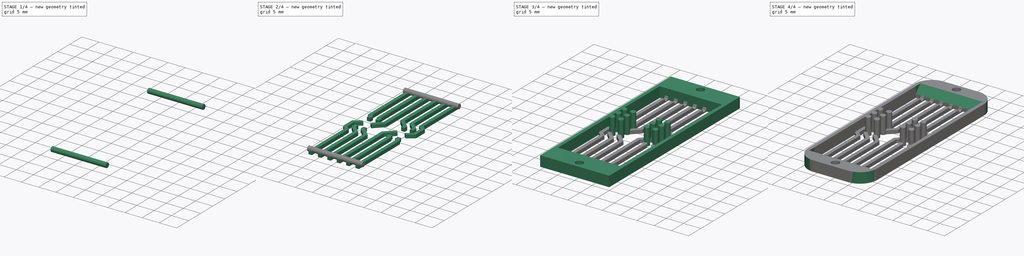
[diagram: build sequence overview — one tinted view per stage of 4, left to right]
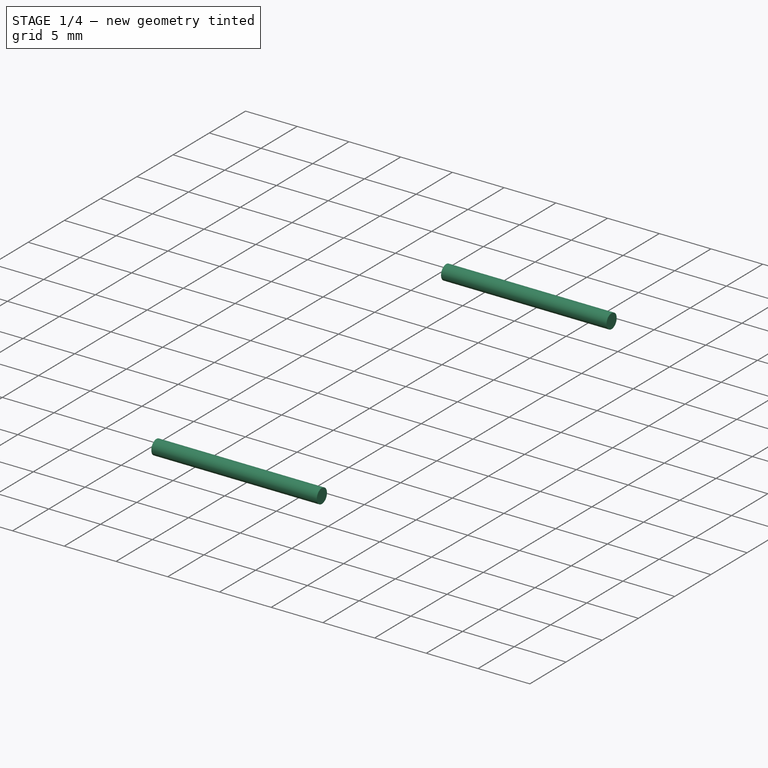
[diagram: stage 1 of 4 — iso view after this stage's code; geometry added in this stage tinted green]
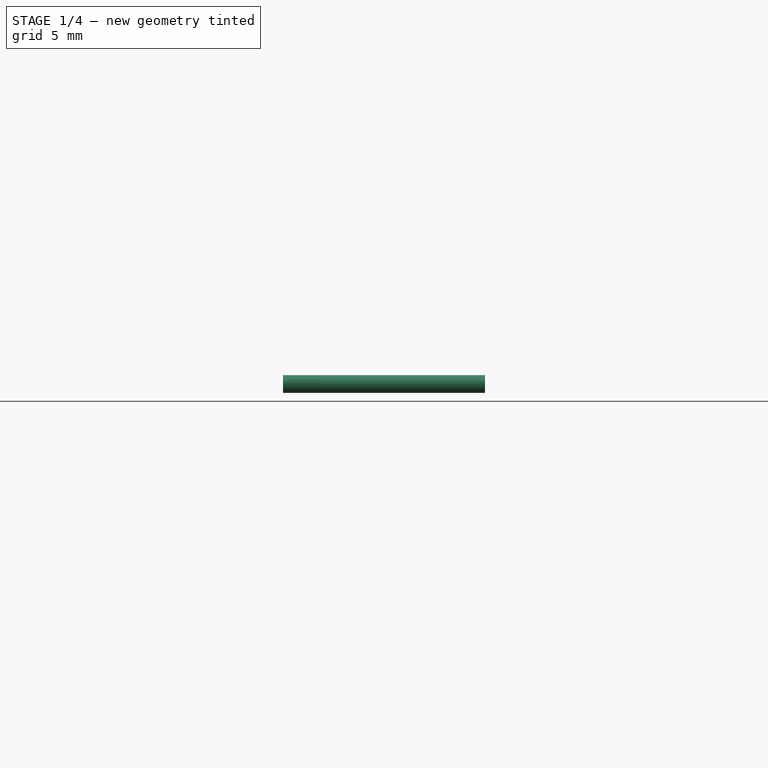
[diagram: stage 1 of 4 — front view after this stage's code; geometry added in this stage tinted green]
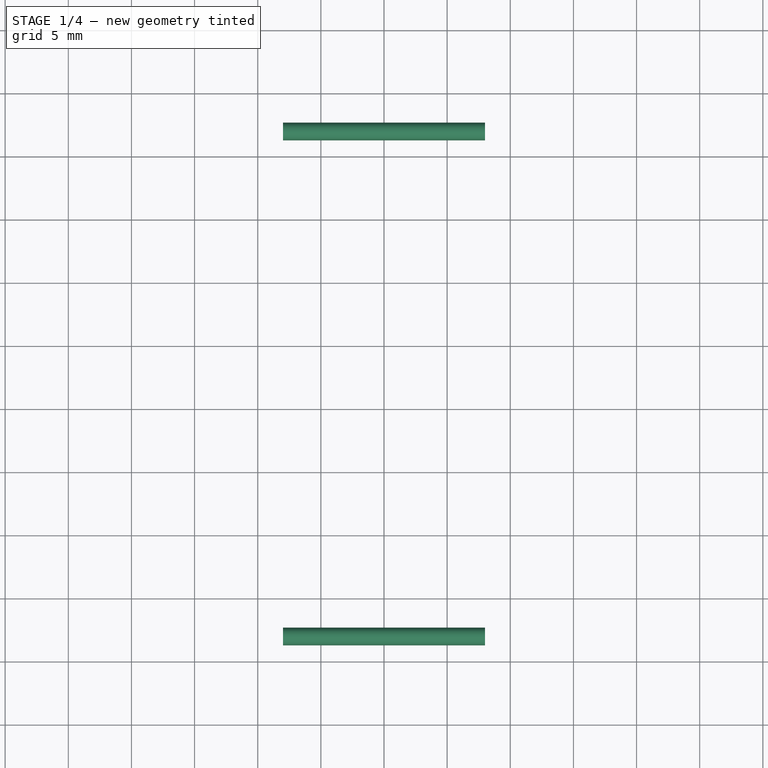
[diagram: stage 1 of 4 — top view after this stage's code; geometry added in this stage tinted green]
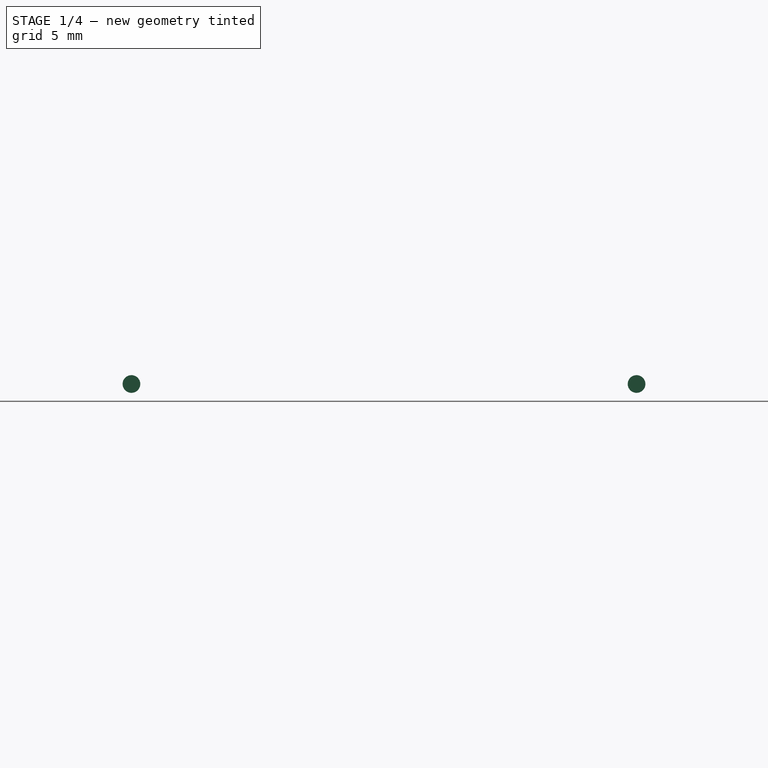
[diagram: stage 1 of 4 — right view after this stage's code; geometry added in this stage tinted green]
FCSTD DOCUMENT  (FreeCAD 0.16R6706 (Git))
Label: Pins_2.1
License: All rights reserved
LicenseURL: http://en.wikipedia.org/wiki/All_rights_reserved
objects: Sketcher::SketchObject×4, PartDesign::Pad×4, Part::MultiFuse×3, PartDesign::Fillet×2, Part::Cylinder×2, Part::Cut×1, PartDesign::Chamfer×1
note: 21 computed .brp shape members not serialized (recipe doc carries the construction recipe); baked Part::Feature solids carry a one-line shape summary decoded from their .brp

FEATURE [Part::Cylinder] Cylinder  label="Zylinder"
  Angle = 360
  Height = 16
  Placement = pos=(2,47,1) rot=(0,1,0;1.5708rad)
  Radius = 0.7
FEATURE [Part::Cylinder] Cylinder001  label="Zylinder001"
  Angle = 360
  Height = 16
  Placement = pos=(2,7,1) rot=(0,1,0;1.5708rad)
  Radius = 0.7
FEATURE [Part::MultiFuse] Fusion001
  Shapes = -> [Cylinder001,Cylinder]
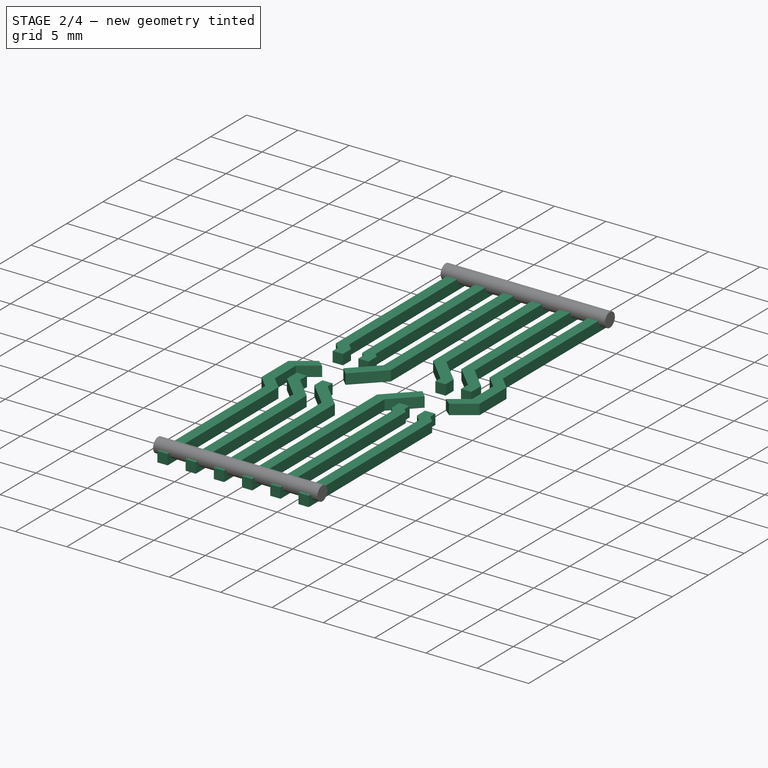
[diagram: stage 2 of 4 — iso view after this stage's code; geometry added in this stage tinted green]
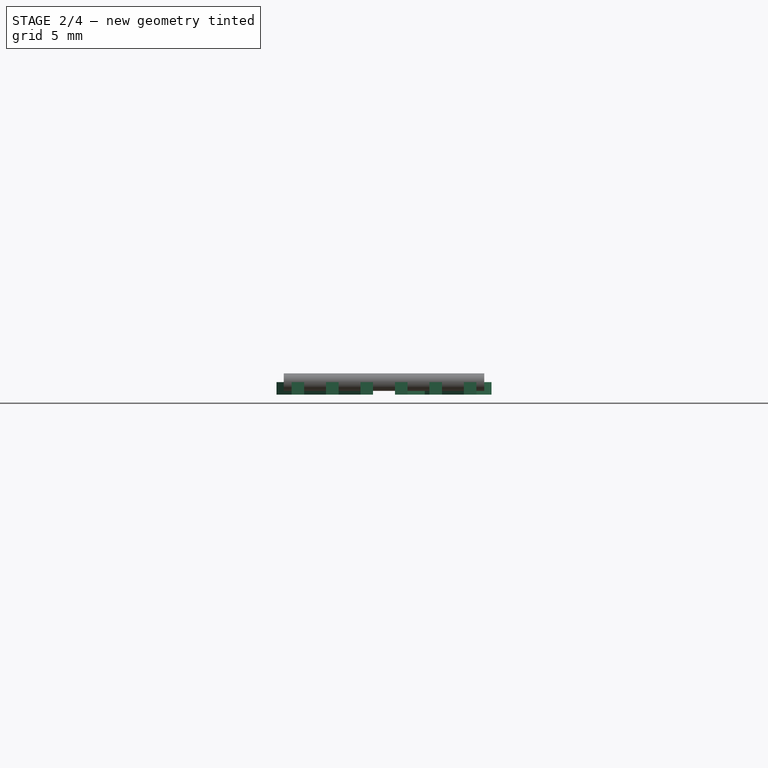
[diagram: stage 2 of 4 — front view after this stage's code; geometry added in this stage tinted green]
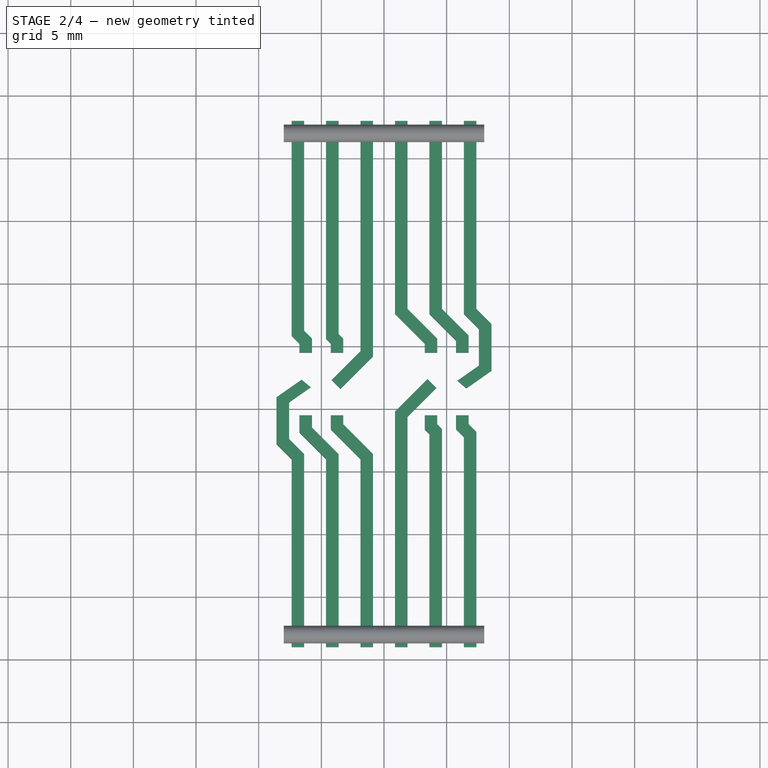
[diagram: stage 2 of 4 — top view after this stage's code; geometry added in this stage tinted green]
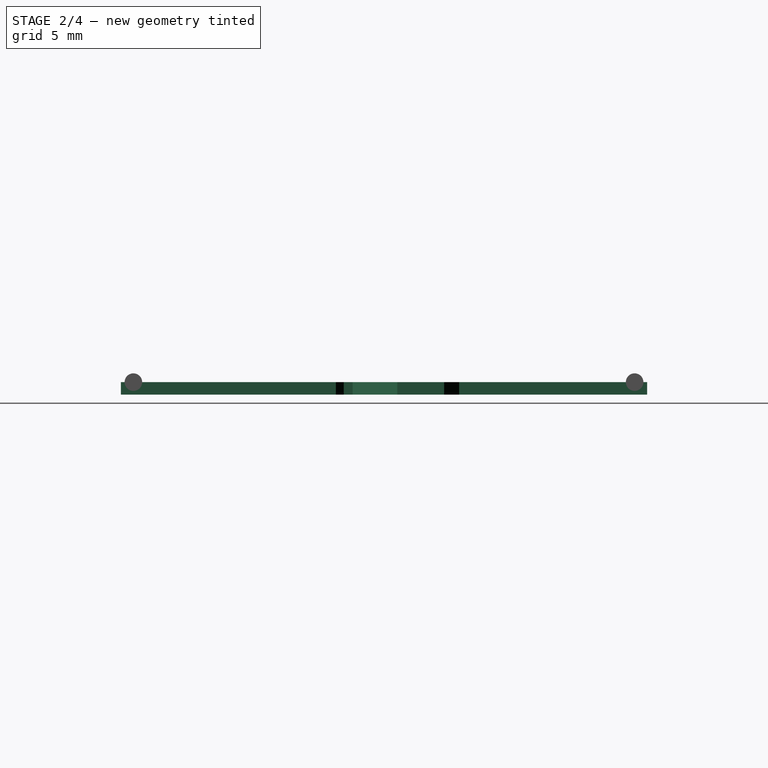
[diagram: stage 2 of 4 — right view after this stage's code; geometry added in this stage tinted green]
FEATURE [Sketcher::SketchObject] Sketch
  sketch-geometry (48):
    g0: LineSegment StartX=2.625 StartY=6 StartZ=0 EndX=2.625 EndY=21 EndZ=0
    g1: LineSegment StartX=3.625 StartY=21.4142 StartZ=0 EndX=3.625 EndY=6 EndZ=0
    g2: LineSegment StartX=5.375 StartY=6 StartZ=0 EndX=5.375 EndY=21 EndZ=0
    g3: LineSegment StartX=6.375 StartY=21.4142 StartZ=0 EndX=6.375 EndY=6 EndZ=0
    g4: LineSegment StartX=8.125 StartY=6 StartZ=0 EndX=8.125 EndY=21 EndZ=0
    g5: LineSegment StartX=9.125 StartY=21.4142 StartZ=0 EndX=9.125 EndY=6 EndZ=0
    g6: LineSegment StartX=10.875 StartY=6 StartZ=0 EndX=10.875 EndY=24.8 EndZ=0
    g7: LineSegment StartX=11.875 StartY=24.3858 StartZ=0 EndX=11.875 EndY=6 EndZ=0
    g8: LineSegment StartX=16.375 StartY=6 StartZ=0 EndX=16.375 EndY=22.75 EndZ=0
    g9: LineSegment StartX=17.375 StartY=23.1642 StartZ=0 EndX=17.375 EndY=6 EndZ=0
    g10: LineSegment StartX=5.375 StartY=21 StartZ=0 EndX=3.25 EndY=23.125 EndZ=0
    g11: LineSegment StartX=4.25 StartY=23.5392 StartZ=0 EndX=6.375 EndY=21.4142 EndZ=0
    g12: LineSegment StartX=2.625 StartY=21 StartZ=0 EndX=1.425 EndY=22.2 EndZ=0
    g13: LineSegment StartX=3.25 StartY=23.125 StartZ=0 EndX=3.25 EndY=24.5 EndZ=0
    g14: LineSegment StartX=3.25 StartY=24.5 StartZ=0 EndX=4.25 EndY=24.5 EndZ=0
    g15: LineSegment StartX=4.25 StartY=24.5 StartZ=0 EndX=4.25 EndY=23.5392 EndZ=0
    g16: LineSegment StartX=8.125 StartY=21 StartZ=0 EndX=5.75 EndY=23.375 EndZ=0
    g17: LineSegment StartX=5.75 StartY=23.375 StartZ=0 EndX=5.75 EndY=24.5 EndZ=0
    g18: LineSegment StartX=5.75 StartY=24.5 StartZ=0 EndX=6.75 EndY=24.5 EndZ=0
    g19: LineSegment StartX=6.75 StartY=24.5 StartZ=0 EndX=6.75 EndY=23.7892 EndZ=0
    g20: LineSegment StartX=6.75 StartY=23.7892 StartZ=0 EndX=9.125 EndY=21.4142 EndZ=0
    g21: LineSegment StartX=2.425 StartY=22.6142 StartZ=0 EndX=2.425 EndY=25.5317 EndZ=0
    g22: LineSegment StartX=2.425 StartY=22.6142 StartZ=0 EndX=3.625 EndY=21.4142 EndZ=0
    g23: LineSegment StartX=3.42537 StartY=27.3466 StartZ=0 EndX=4.15106 EndY=26.7403 EndZ=0
    g24: LineSegment StartX=4.15106 StartY=26.7403 StartZ=0 EndX=2.425 EndY=25.5317 EndZ=0
    g25: LineSegment StartX=3.42537 StartY=27.3466 StartZ=0 EndX=1.425 EndY=25.9459 EndZ=0
    g26: LineSegment StartX=2.625 StartY=6 StartZ=0 EndX=3.625 EndY=6 EndZ=0
    g27: LineSegment StartX=6.375 StartY=6 StartZ=0 EndX=5.375 EndY=6 EndZ=0
    g28: LineSegment StartX=8.125 StartY=6 StartZ=0 EndX=9.125 EndY=6 EndZ=0
    g29: LineSegment StartX=10.875 StartY=6 StartZ=0 EndX=11.875 EndY=6 EndZ=0
    g30: LineSegment StartX=13.625 StartY=6 StartZ=0 EndX=14.625 EndY=6 EndZ=0
    g31: LineSegment StartX=16.375 StartY=6 StartZ=0 EndX=17.375 EndY=6 EndZ=0
    g32: LineSegment StartX=10.875 StartY=24.8 StartZ=0 EndX=13.4747 EndY=27.3998 EndZ=0
    g33: LineSegment StartX=13.4747 StartY=27.3998 StartZ=0 EndX=14.1788 EndY=26.6896 EndZ=0
    g34: LineSegment StartX=14.1788 StartY=26.6896 StartZ=0 EndX=11.875 EndY=24.3858 EndZ=0
    g35: LineSegment StartX=13.625 StartY=6 StartZ=0 EndX=13.625 EndY=23 EndZ=0
    g36: LineSegment StartX=13.625 StartY=23 StartZ=0 EndX=13.25 EndY=23.375 EndZ=0
    g37: LineSegment StartX=14.25 StartY=23.7892 StartZ=0 EndX=14.625 EndY=23.4142 EndZ=0
    g38: LineSegment StartX=14.625 StartY=23.4142 StartZ=0 EndX=14.625 EndY=6 EndZ=0
    g39: LineSegment StartX=13.25 StartY=23.375 StartZ=0 EndX=13.25 EndY=24.5 EndZ=0
    g40: LineSegment StartX=13.25 StartY=24.5 StartZ=0 EndX=14.25 EndY=24.5 EndZ=0
    g41: LineSegment StartX=14.25 StartY=24.5 StartZ=0 EndX=14.25 EndY=23.7892 EndZ=0
    g42: LineSegment StartX=17.375 StartY=23.1642 StartZ=0 EndX=16.75 EndY=23.7892 EndZ=0
    g43: LineSegment StartX=16.75 StartY=23.7892 StartZ=0 EndX=16.75 EndY=24.5 EndZ=0
    g44: LineSegment StartX=16.75 StartY=24.5 StartZ=0 EndX=15.75 EndY=24.5 EndZ=0
    g45: LineSegment StartX=15.75 StartY=24.5 StartZ=0 EndX=15.75 EndY=23.375 EndZ=0
    g46: LineSegment StartX=15.75 StartY=23.375 StartZ=0 EndX=16.375 EndY=22.75 EndZ=0
    g47: LineSegment StartX=1.425 StartY=22.2 StartZ=0 EndX=1.425 EndY=25.9459 EndZ=0
  constraints (139):
    c: Vertical(g0)
    c: Vertical(g1)
    c: Vertical(g2)
    c: Vertical(g3)
    c: Vertical(g4)
    c: Vertical(g5)
    c: Vertical(g6)
    c: Vertical(g7)
    c: DistanceX(g-1,g0) = 2.625
    c: DistanceX(g0,g1) = 1
    c: DistanceX(g1,g2) = 1.75
    c: DistanceX(g5,g6) = 1.75
    c: DistanceX(g4,g5) = 1
    c: DistanceX(g6,g7) = 1
    c: Vertical(g8)
    c: Vertical(g9)
    c: Coincident(g10,g2)
    c: Coincident(g11,g3)
    c: DistanceX(g10,g11) = 1
    c: Angle(g10) = 2.35619
    c: Coincident(g12,g0)
    c: DistanceX(g-1,g10) = 3.25
    c: Angle(g11) = -0.785398
    c: Angle(g12) = 2.35619
    c: Coincident(g10,g13)
    c: Vertical(g13)
    c: Coincident(g13,g14)
    c: Horizontal(g14)
    c: Coincident(g14,g15)
    c: Coincident(g15,g11)
    c: Vertical(g15)
    c: DistanceY(g-1,g13) = 24.5
    c: Coincident(g4,g16)
    c: Coincident(g16,g17)
    c: Vertical(g17)
    c: Coincident(g17,g18)
    c: Horizontal(g18)
    c: Coincident(g18,g19)
    c: Vertical(g19)
    c: Coincident(g19,g20)
    c: Coincident(g20,g5)
    c: Angle(g16) = 2.35619
    c: Angle(g20) = -0.785398
    c: DistanceX(g16,g19) = 1
    c: DistanceX(g-1,g16) = 5.75
    c: DistanceY(g17,g14) = 0
    c: DistanceY(g-1,g12) = 22.2
    c: Vertical(g21)
    c: Coincident(g22,g21)
    c: Coincident(g22,g1)
    c: Angle(g22) = -0.785398
    c: DistanceY(g-1,g0) = 21
    c: DistanceX(g12,g21) = 1
    c: DistanceY(g0,g1) = 0.414214
    c: Coincident(g23,g24)
    c: Coincident(g24,g21)
    c: Coincident(g25,g23)
    c: Angle(g25) = -2.53073
    c: Angle(g24) = -2.53073
    c: DistanceX(g2,g3) = 1
    c: DistanceX(g3,g4) = 1.75
    c: DistanceY(g10,g11) = 0.414214
    c: DistanceY(g3,g1) = 0
    c: DistanceY(g5,g3) = 0
    c: DistanceY(g4,g5) = 0.414214
    c: Coincident(g26,g0)
    c: Coincident(g26,g1)
    c: Horizontal(g26)
    c: Coincident(g27,g3)
    c: Coincident(g27,g2)
    c: Horizontal(g27)
    c: Coincident(g28,g4)
    c: Coincident(g28,g5)
    c: Horizontal(g28)
    c: Coincident(g29,g6)
    c: Coincident(g29,g7)
    c: Horizontal(g29)
    c: Horizontal(g30)
    c: Coincident(g31,g8)
    c: Coincident(g31,g9)
    c: Horizontal(g31)
    c: DistanceY(g-1,g0) = 6
    c: DistanceY(g-1,g2) = 6
    c: DistanceY(g-1,g4) = 6
    c: DistanceY(g-1,g6) = 6
    c: DistanceY(g-1,g30) = 6
    c: DistanceY(g-1,g8) = 6
    c: DistanceY(g7,g6) = 0.414214
    c: Coincident(g6,g32)
    c: Coincident(g32,g33)
    c: Coincident(g33,g34)
    c: Coincident(g34,g7)
    c: Angle(g32) = 0.785398
    c: Angle(g34) = -2.35619
    c: Distance(g32,g33) = 1
    c: DistanceX(g30,g30) = 1
    c: DistanceY(g8,g9) = 0.414214
    c: Coincident(g30,g35)
    c: Vertical(g35)
    c: Coincident(g35,g36)
    c: Coincident(g37,g38)
    c: Coincident(g38,g30)
    c: Vertical(g38)
    c: DistanceY(g35,g37) = 0.414214
    c: Angle(g36) = 2.35619
    c: DistanceX(g7,g30) = 1.75
    c: DistanceY(g36,g37) = 0.414214
    c: DistanceY(g19,g37) = 0
    c: Angle(g37) = -0.785398
    c: Coincident(g36,g39)
    c: Vertical(g39)
    c: Coincident(g39,g40)
    c: Horizontal(g40)
    c: Coincident(g40,g41)
    c: Coincident(g41,g37)
    c: Vertical(g41)
    c: DistanceY(g-1,g39) = 24.5
    c: DistanceX(g-1,g39) = 13.25
    c: Coincident(g9,g42)
    c: Coincident(g42,g43)
    c: Vertical(g43)
    c: Coincident(g43,g44)
    c: Horizontal(g44)
    c: Coincident(g44,g45)
    c: Vertical(g45)
    c: Coincident(g45,g46)
    c: Coincident(g46,g8)
    c: DistanceY(g44,g39) = 0
    c: DistanceY(g45,g36) = 0
    c: DistanceX(g-1,g44) = 15.75
    c: DistanceX(g44,g43) = 1
    c: Angle(g42) = 2.35619
    c: Angle(g46) = -0.785398
    c: Coincident(g47,g12)
    c: Coincident(g47,g25)
    c: Vertical(g47)
    c: DistanceX(g8,g9) = 1
    c: DistanceY(g45,g42) = 0.414214
    c: DistanceX(g30,g8) = 1.75
FEATURE [Sketcher::SketchObject] Sketch001
  sketch-geometry (12):
    g0: Circle CenterX=3.75 CenterY=29.5 CenterZ=0 NormalX=0 NormalY=0 NormalZ=1 Radius=0.75
    g1: Circle CenterX=3.75 CenterY=27 CenterZ=0 NormalX=0 NormalY=0 NormalZ=1 Radius=0.75
    g2: Circle CenterX=3.75 CenterY=24.5 CenterZ=0 NormalX=0 NormalY=0 NormalZ=1 Radius=0.75
    g3: Circle CenterX=6.25 CenterY=29.5 CenterZ=0 NormalX=0 NormalY=0 NormalZ=1 Radius=0.75
    g4: Circle CenterX=6.25 CenterY=27 CenterZ=0 NormalX=0 NormalY=0 NormalZ=1 Radius=0.75
    g5: Circle CenterX=6.25 CenterY=24.5 CenterZ=0 NormalX=0 NormalY=0 NormalZ=1 Radius=0.75
    g6: Circle CenterX=13.75 CenterY=29.5 CenterZ=0 NormalX=0 NormalY=0 NormalZ=1 Radius=0.75
    g7: Circle CenterX=13.75 CenterY=27 CenterZ=0 NormalX=0 NormalY=0 NormalZ=1 Radius=0.75
    g8: Circle CenterX=13.75 CenterY=24.5 CenterZ=0 NormalX=0 NormalY=0 NormalZ=1 Radius=0.75
    g9: Circle CenterX=16.25 CenterY=24.5 CenterZ=0 NormalX=0 NormalY=0 NormalZ=1 Radius=0.75
    g10: Circle CenterX=16.25 CenterY=27 CenterZ=0 NormalX=0 NormalY=0 NormalZ=1 Radius=0.75
    g11: Circle CenterX=16.25 CenterY=29.5 CenterZ=0 NormalX=0 NormalY=0 NormalZ=1 Radius=0.75
  constraints (36):
    c: Radius(g0) = 0.75
    c: Radius(g3) = 0.75
    c: Radius(g1) = 0.75
    c: Radius(g4) = 0.75
    c: Radius(g2) = 0.75
    c: Radius(g5) = 0.75
    c: Radius(g6) = 0.75
    c: Radius(g7) = 0.75
    c: Radius(g11) = 0.75
    c: Radius(g10) = 0.75
    c: Radius(g8) = 0.75
    c: Radius(g9) = 0.75
    c: DistanceX(g0,g3) = 2.5
    c: DistanceY(g3,g0) = 0
    c: DistanceY(g1,g4) = 0
    c: DistanceY(g1,g0) = 2.5
    c: DistanceX(g1,g0) = 0
    c: DistanceX(g3,g4) = 0
    c: DistanceY(g2,g1) = 2.5
    c: DistanceY(g5,g2) = 0
    c: DistanceX(g4,g5) = 0
    c: DistanceX(g2,g1) = 0
    c: DistanceX(g6,g11) = 2.5
    c: DistanceX(g11,g10) = 0
    c: DistanceX(g7,g6) = 0
    c: DistanceX(g8,g7) = 0
    c: DistanceX(g10,g9) = 0
    c: DistanceY(g9,g10) = 2.5
    c: DistanceY(g9,g8) = 0
    c: DistanceY(g10,g7) = 0
    c: DistanceY(g10,g11) = 2.5
    c: DistanceY(g11,g6) = 0
    c: DistanceY(g6,g3) = 0
    c: DistanceX(g3,g6) = 7.5
    c: DistanceX(g-1,g0) = 3.75
    c: DistanceY(g-1,g1) = 27
FEATURE [PartDesign::Pad] Pad  label="PIN1"
  Length = 1
  Length2 = 100
  Sketch = -> Sketch
  Type = 0
FEATURE [Sketcher::SketchObject] Sketch003
  Placement = pos=(20,54,0) rot=(0,0,1;3.14159rad)
  sketch-geometry (48):
    g0: LineSegment StartX=2.625 StartY=6 StartZ=0 EndX=2.625 EndY=21 EndZ=0
    g1: LineSegment StartX=3.625 StartY=21.4142 StartZ=0 EndX=3.625 EndY=6 EndZ=0
    g2: LineSegment StartX=5.375 StartY=6 StartZ=0 EndX=5.375 EndY=21 EndZ=0
    g3: LineSegment StartX=6.375 StartY=21.4142 StartZ=0 EndX=6.375 EndY=6 EndZ=0
    g4: LineSegment StartX=8.125 StartY=6 StartZ=0 EndX=8.125 EndY=21 EndZ=0
    g5: LineSegment StartX=9.125 StartY=21.4142 StartZ=0 EndX=9.125 EndY=6 EndZ=0
    g6: LineSegment StartX=10.875 StartY=6 StartZ=0 EndX=10.875 EndY=24.8 EndZ=0
    g7: LineSegment StartX=11.875 StartY=24.3858 StartZ=0 EndX=11.875 EndY=6 EndZ=0
    g8: LineSegment StartX=16.375 StartY=6 StartZ=0 EndX=16.375 EndY=22.75 EndZ=0
    g9: LineSegment StartX=17.375 StartY=23.1642 StartZ=0 EndX=17.375 EndY=6 EndZ=0
    g10: LineSegment StartX=5.375 StartY=21 StartZ=0 EndX=3.25 EndY=23.125 EndZ=0
    g11: LineSegment StartX=4.25 StartY=23.5392 StartZ=0 EndX=6.375 EndY=21.4142 EndZ=0
    g12: LineSegment StartX=2.625 StartY=21 StartZ=0 EndX=1.425 EndY=22.2 EndZ=0
    g13: LineSegment StartX=3.25 StartY=23.125 StartZ=0 EndX=3.25 EndY=24.5 EndZ=0
    g14: LineSegment StartX=3.25 StartY=24.5 StartZ=0 EndX=4.25 EndY=24.5 EndZ=0
    g15: LineSegment StartX=4.25 StartY=24.5 StartZ=0 EndX=4.25 EndY=23.5392 EndZ=0
    g16: LineSegment StartX=8.125 StartY=21 StartZ=0 EndX=5.75 EndY=23.375 EndZ=0
    g17: LineSegment StartX=5.75 StartY=23.375 StartZ=0 EndX=5.75 EndY=24.5 EndZ=0
    g18: LineSegment StartX=5.75 StartY=24.5 StartZ=0 EndX=6.75 EndY=24.5 EndZ=0
    g19: LineSegment StartX=6.75 StartY=24.5 StartZ=0 EndX=6.75 EndY=23.7892 EndZ=0
    g20: LineSegment StartX=6.75 StartY=23.7892 StartZ=0 EndX=9.125 EndY=21.4142 EndZ=0
    g21: LineSegment StartX=2.425 StartY=22.6142 StartZ=0 EndX=2.425 EndY=25.5317 EndZ=0
    g22: LineSegment StartX=2.425 StartY=22.6142 StartZ=0 EndX=3.625 EndY=21.4142 EndZ=0
    g23: LineSegment StartX=3.42537 StartY=27.3466 StartZ=0 EndX=4.15106 EndY=26.7403 EndZ=0
    g24: LineSegment StartX=4.15106 StartY=26.7403 StartZ=0 EndX=2.425 EndY=25.5317 EndZ=0
    g25: LineSegment StartX=3.42537 StartY=27.3466 StartZ=0 EndX=1.425 EndY=25.9459 EndZ=0
    g26: LineSegment StartX=2.625 StartY=6 StartZ=0 EndX=3.625 EndY=6 EndZ=0
    g27: LineSegment StartX=6.375 StartY=6 StartZ=0 EndX=5.375 EndY=6 EndZ=0
    g28: LineSegment StartX=8.125 StartY=6 StartZ=0 EndX=9.125 EndY=6 EndZ=0
    g29: LineSegment StartX=10.875 StartY=6 StartZ=0 EndX=11.875 EndY=6 EndZ=0
    g30: LineSegment StartX=13.625 StartY=6 StartZ=0 EndX=14.625 EndY=6 EndZ=0
    g31: LineSegment StartX=16.375 StartY=6 StartZ=0 EndX=17.375 EndY=6 EndZ=0
    g32: LineSegment StartX=10.875 StartY=24.8 StartZ=0 EndX=13.4747 EndY=27.3998 EndZ=0
    g33: LineSegment StartX=13.4747 StartY=27.3998 StartZ=0 EndX=14.1788 EndY=26.6896 EndZ=0
    g34: LineSegment StartX=14.1788 StartY=26.6896 StartZ=0 EndX=11.875 EndY=24.3858 EndZ=0
    g35: LineSegment StartX=13.625 StartY=6 StartZ=0 EndX=13.625 EndY=23 EndZ=0
    g36: LineSegment StartX=13.625 StartY=23 StartZ=0 EndX=13.25 EndY=23.375 EndZ=0
    g37: LineSegment StartX=14.25 StartY=23.7892 StartZ=0 EndX=14.625 EndY=23.4142 EndZ=0
    g38: LineSegment StartX=14.625 StartY=23.4142 StartZ=0 EndX=14.625 EndY=6 EndZ=0
    g39: LineSegment StartX=13.25 StartY=23.375 StartZ=0 EndX=13.25 EndY=24.5 EndZ=0
    g40: LineSegment StartX=13.25 StartY=24.5 StartZ=0 EndX=14.25 EndY=24.5 EndZ=0
    g41: LineSegment StartX=14.25 StartY=24.5 StartZ=0 EndX=14.25 EndY=23.7892 EndZ=0
    g42: LineSegment StartX=17.375 StartY=23.1642 StartZ=0 EndX=16.75 EndY=23.7892 EndZ=0
    g43: LineSegment StartX=16.75 StartY=23.7892 StartZ=0 EndX=16.75 EndY=24.5 EndZ=0
    g44: LineSegment StartX=16.75 StartY=24.5 StartZ=0 EndX=15.75 EndY=24.5 EndZ=0
    g45: LineSegment StartX=15.75 StartY=24.5 StartZ=0 EndX=15.75 EndY=23.375 EndZ=0
    g46: LineSegment StartX=15.75 StartY=23.375 StartZ=0 EndX=16.375 EndY=22.75 EndZ=0
    g47: LineSegment StartX=1.425 StartY=22.2 StartZ=0 EndX=1.425 EndY=25.9459 EndZ=0
  constraints (139):
    c: Vertical(g0)
    c: Vertical(g1)
    c: Vertical(g2)
    c: Vertical(g3)
    c: Vertical(g4)
    c: Vertical(g5)
    c: Vertical(g6)
    c: Vertical(g7)
    c: DistanceX(g-1,g0) = 2.625
    c: DistanceX(g0,g1) = 1
    c: DistanceX(g1,g2) = 1.75
    c: DistanceX(g5,g6) = 1.75
    c: DistanceX(g4,g5) = 1
    c: DistanceX(g6,g7) = 1
    c: Vertical(g8)
    c: Vertical(g9)
    c: Coincident(g10,g2)
    c: Coincident(g11,g3)
    c: DistanceX(g10,g11) = 1
    c: Angle(g10) = 2.35619
    c: Coincident(g12,g0)
    c: DistanceX(g-1,g10) = 3.25
    c: Angle(g11) = -0.785398
    c: Angle(g12) = 2.35619
    c: Coincident(g10,g13)
    c: Vertical(g13)
    c: Coincident(g13,g14)
    c: Horizontal(g14)
    c: Coincident(g14,g15)
    c: Coincident(g15,g11)
    c: Vertical(g15)
    c: DistanceY(g-1,g13) = 24.5
    c: Coincident(g4,g16)
    c: Coincident(g16,g17)
    c: Vertical(g17)
    c: Coincident(g17,g18)
    c: Horizontal(g18)
    c: Coincident(g18,g19)
    c: Vertical(g19)
    c: Coincident(g19,g20)
    c: Coincident(g20,g5)
    c: Angle(g16) = 2.35619
    c: Angle(g20) = -0.785398
    c: DistanceX(g16,g19) = 1
    c: DistanceX(g-1,g16) = 5.75
    c: DistanceY(g17,g14) = 0
    c: DistanceY(g-1,g12) = 22.2
    c: Vertical(g21)
    c: Coincident(g22,g21)
    c: Coincident(g22,g1)
    c: Angle(g22) = -0.785398
    c: DistanceY(g-1,g0) = 21
    c: DistanceX(g12,g21) = 1
    c: DistanceY(g0,g1) = 0.414214
    c: Coincident(g23,g24)
    c: Coincident(g24,g21)
    c: Coincident(g25,g23)
    c: Angle(g25) = -2.53073
    c: Angle(g24) = -2.53073
    c: DistanceX(g2,g3) = 1
    c: DistanceX(g3,g4) = 1.75
    c: DistanceY(g10,g11) = 0.414214
    c: DistanceY(g3,g1) = 0
    c: DistanceY(g5,g3) = 0
    c: DistanceY(g4,g5) = 0.414214
    c: Coincident(g26,g0)
    c: Coincident(g26,g1)
    c: Horizontal(g26)
    c: Coincident(g27,g3)
    c: Coincident(g27,g2)
    c: Horizontal(g27)
    c: Coincident(g28,g4)
    c: Coincident(g28,g5)
    c: Horizontal(g28)
    c: Coincident(g29,g6)
    c: Coincident(g29,g7)
    c: Horizontal(g29)
    c: Horizontal(g30)
    c: Coincident(g31,g8)
    c: Coincident(g31,g9)
    c: Horizontal(g31)
    c: DistanceY(g-1,g0) = 6
    c: DistanceY(g-1,g2) = 6
    c: DistanceY(g-1,g4) = 6
    c: DistanceY(g-1,g6) = 6
    c: DistanceY(g-1,g30) = 6
    c: DistanceY(g-1,g8) = 6
    c: DistanceY(g7,g6) = 0.414214
    c: Coincident(g6,g32)
    c: Coincident(g32,g33)
    c: Coincident(g33,g34)
    c: Coincident(g34,g7)
    c: Angle(g32) = 0.785398
    c: Angle(g34) = -2.35619
    c: Distance(g32,g33) = 1
    c: DistanceX(g30,g30) = 1
    c: DistanceY(g8,g9) = 0.414214
    c: Coincident(g30,g35)
    c: Vertical(g35)
    c: Coincident(g35,g36)
    c: Coincident(g37,g38)
    c: Coincident(g38,g30)
    c: Vertical(g38)
    c: DistanceY(g35,g37) = 0.414214
    c: Angle(g36) = 2.35619
    c: DistanceX(g7,g30) = 1.75
    c: DistanceY(g36,g37) = 0.414214
    c: DistanceY(g19,g37) = 0
    c: Angle(g37) = -0.785398
    c: Coincident(g36,g39)
    c: Vertical(g39)
    c: Coincident(g39,g40)
    c: Horizontal(g40)
    c: Coincident(g40,g41)
    c: Coincident(g41,g37)
    c: Vertical(g41)
    c: DistanceY(g-1,g39) = 24.5
    c: DistanceX(g-1,g39) = 13.25
    c: Coincident(g9,g42)
    c: Coincident(g42,g43)
    c: Vertical(g43)
    c: Coincident(g43,g44)
    c: Horizontal(g44)
    c: Coincident(g44,g45)
    c: Vertical(g45)
    c: Coincident(g45,g46)
    c: Coincident(g46,g8)
    c: DistanceY(g44,g39) = 0
    c: DistanceY(g45,g36) = 0
    c: DistanceX(g-1,g44) = 15.75
    c: DistanceX(g44,g43) = 1
    c: Angle(g42) = 2.35619
    c: Angle(g46) = -0.785398
    c: Coincident(g47,g12)
    c: Coincident(g47,g25)
    c: Vertical(g47)
    c: DistanceX(g8,g9) = 1
    c: DistanceY(g45,g42) = 0.414214
    c: DistanceX(g30,g8) = 1.75
FEATURE [PartDesign::Pad] Pad003  label="PIN2"
  Length = 1
  Length2 = 100
  Placement = pos=(20,54,0) rot=(0,0,1;3.14159rad)
  Sketch = -> Sketch003
  Type = 0
FEATURE [Part::MultiFuse] Fusion  label="PINS"
  Shapes = -> [Pad,Pad003]
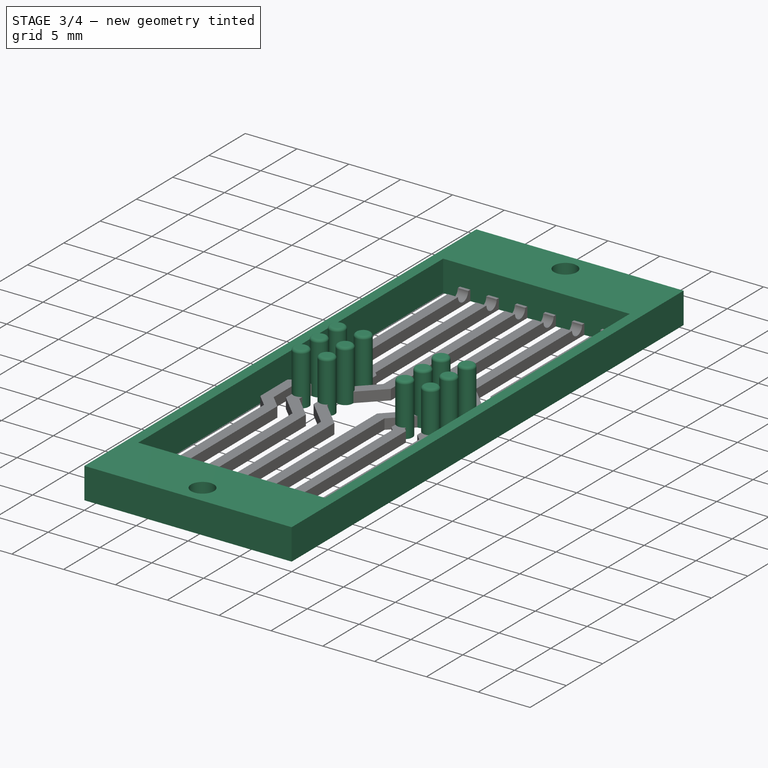
[diagram: stage 3 of 4 — iso view after this stage's code; geometry added in this stage tinted green]
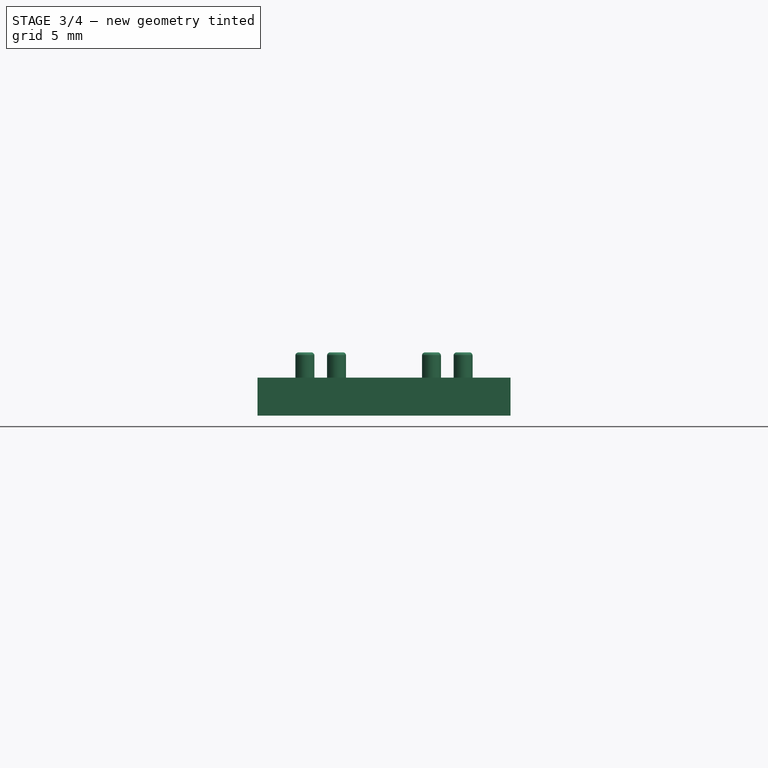
[diagram: stage 3 of 4 — front view after this stage's code; geometry added in this stage tinted green]
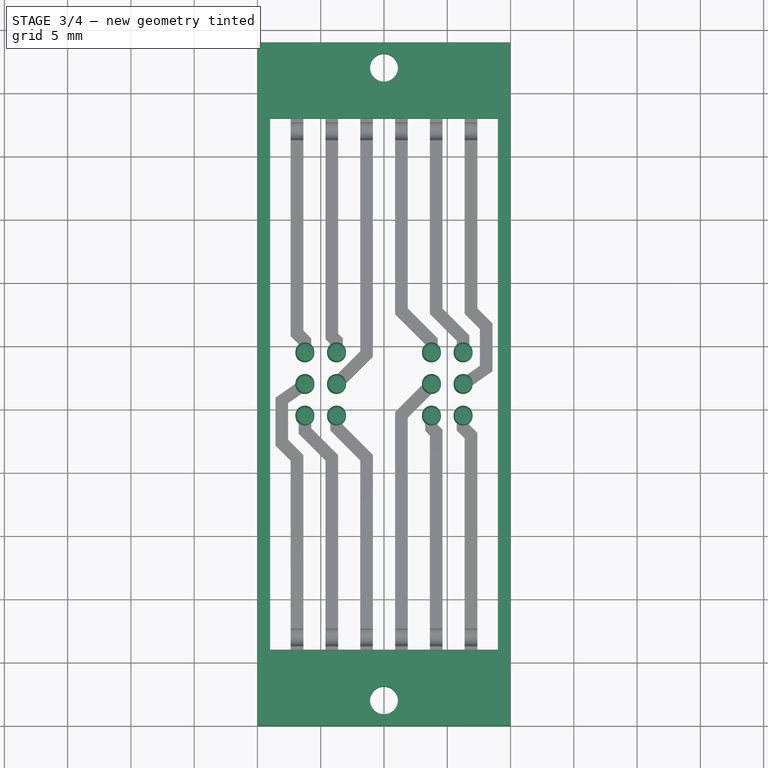
[diagram: stage 3 of 4 — top view after this stage's code; geometry added in this stage tinted green]
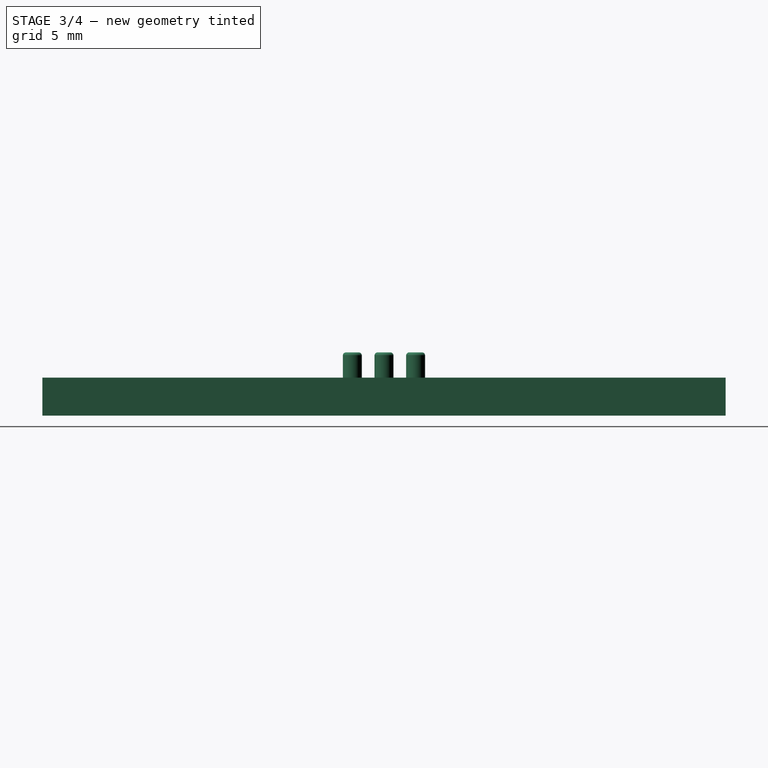
[diagram: stage 3 of 4 — right view after this stage's code; geometry added in this stage tinted green]
FEATURE [PartDesign::Pad] Pad001
  Length = 5
  Length2 = 100
  Sketch = -> Sketch001
  Type = 0
FEATURE [PartDesign::Fillet] Fillet
  Base = -> Pad001 [Edge30,Edge33,Edge36,Edge27,Edge24,Edge21,Edge12,Edge9,Edge6,Edge15,Edge18,Edge3]
  Radius = 0.25
FEATURE [Sketcher::SketchObject] Sketch002
  sketch-geometry (10):
    g0: LineSegment StartX=0 StartY=0 StartZ=0 EndX=20 EndY=0 EndZ=0
    g1: LineSegment StartX=20 StartY=0 StartZ=0 EndX=20 EndY=54 EndZ=0
    g2: LineSegment StartX=0 StartY=54 StartZ=0 EndX=0 EndY=0 EndZ=0
    g3: LineSegment StartX=1 StartY=48 StartZ=0 EndX=1 EndY=6 EndZ=0
    g4: LineSegment StartX=19 StartY=6 StartZ=0 EndX=19 EndY=48 EndZ=0
    g5: Circle CenterX=10 CenterY=2 CenterZ=0 NormalX=0 NormalY=0 NormalZ=1 Radius=1.1
    g6: LineSegment StartX=0 StartY=54 StartZ=0 EndX=20 EndY=54 EndZ=0
    g7: Circle CenterX=10 CenterY=52 CenterZ=0 NormalX=0 NormalY=0 NormalZ=1 Radius=1.1
    g8: LineSegment StartX=1 StartY=6 StartZ=0 EndX=19 EndY=6 EndZ=0
    g9: LineSegment StartX=1 StartY=48 StartZ=0 EndX=19 EndY=48 EndZ=0
  constraints (29):
    c: Coincident(g0,g1)
    c: Coincident(g2,g0)
    c: Horizontal(g0)
    c: Vertical(g1)
    c: Vertical(g2)
    c: Coincident(g0,g-1)
    c: Vertical(g3)
    c: Vertical(g4)
    c: Radius(g5) = 1.1
    c: DistanceX(g-1,g5) = 10
    c: DistanceY(g-1,g5) = 2
    c: DistanceX(g-1,g3) = 1
    c: DistanceX(g4,g0) = 1
    c: DistanceY(g-1,g3) = 6
    c: DistanceY(g-1,g3) = 48
    c: DistanceX(g-1,g0) = 20
    c: DistanceY(g-1,g2) = 54
    c: Coincident(g6,g2)
    c: Coincident(g6,g1)
    c: Horizontal(g6)
    c: Radius(g7) = 1.1
    c: DistanceX(g2,g7) = 10
    c: DistanceY(g7,g2) = 2
    c: Coincident(g8,g3)
    c: Coincident(g8,g4)
    c: Horizontal(g8)
    c: Coincident(g9,g3)
    c: Coincident(g9,g4)
    c: Horizontal(g9)
FEATURE [PartDesign::Pad] Pad002
  Length = 3
  Length2 = 100
  Sketch = -> Sketch002
  Type = 0
FEATURE [Part::Cut] Cut
  Base = -> Fusion
  Tool = -> Fusion001
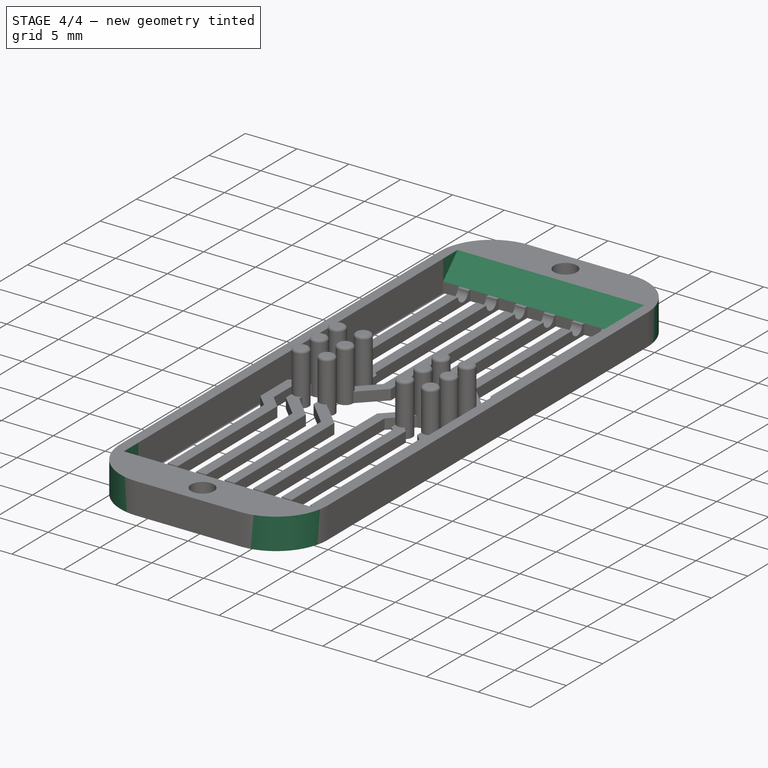
[diagram: stage 4 of 4 — iso view after this stage's code; geometry added in this stage tinted green]
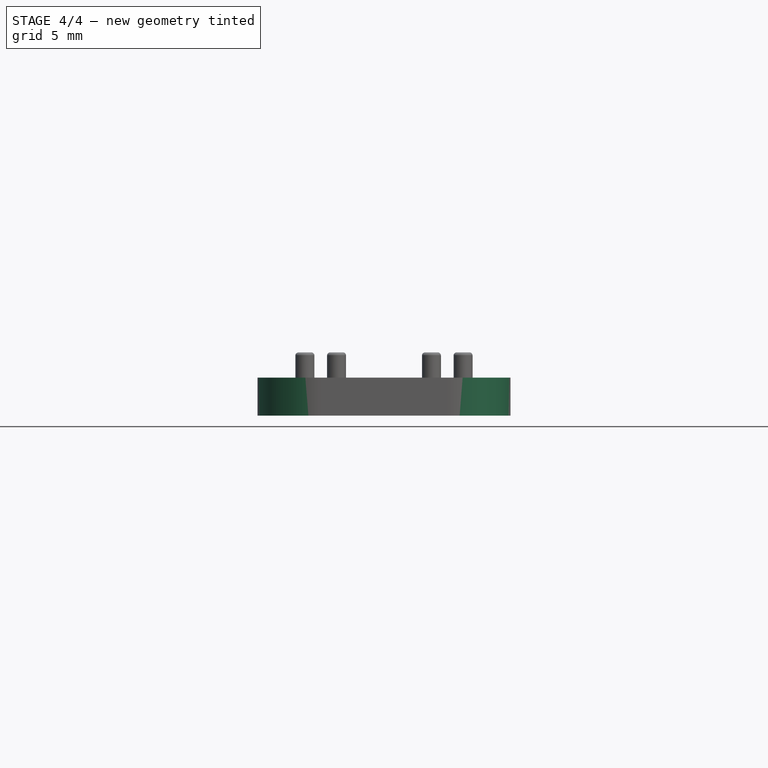
[diagram: stage 4 of 4 — front view after this stage's code; geometry added in this stage tinted green]
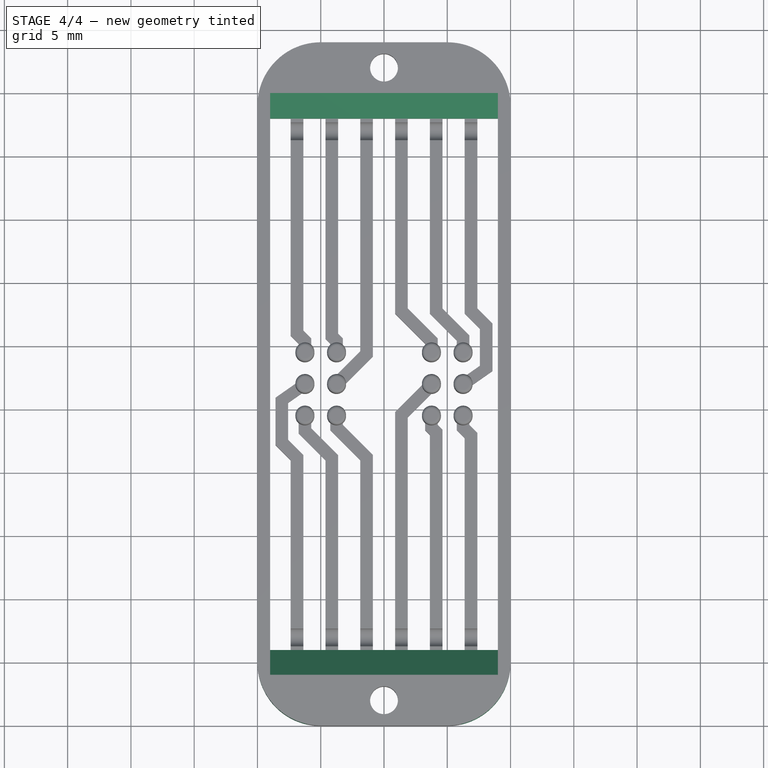
[diagram: stage 4 of 4 — top view after this stage's code; geometry added in this stage tinted green]
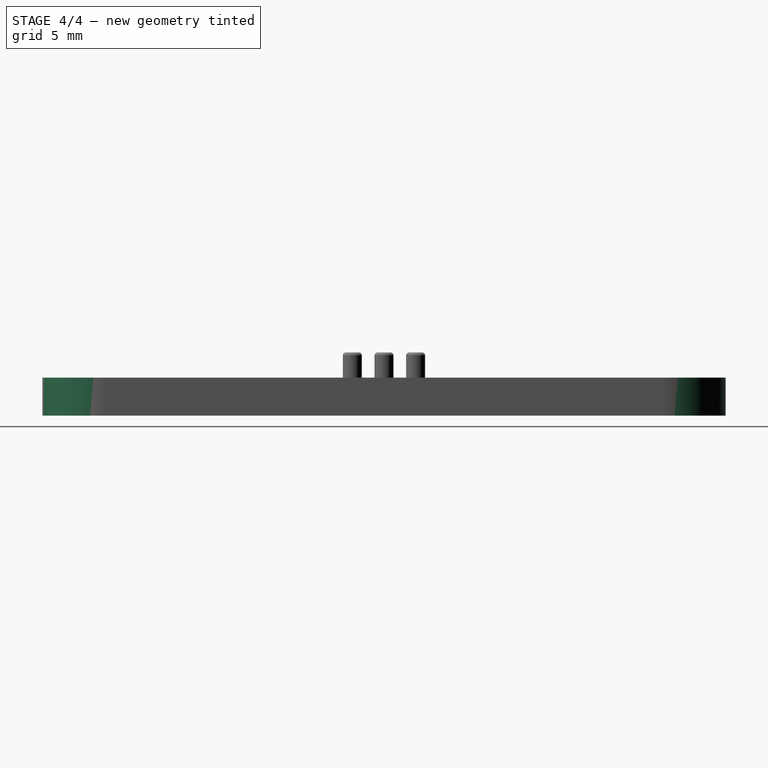
[diagram: stage 4 of 4 — right view after this stage's code; geometry added in this stage tinted green]
FEATURE [Part::MultiFuse] Fusion002
  Shapes = -> [Pad002,Cut,Fillet]
FEATURE [PartDesign::Fillet] Fillet001
  Base = -> Fusion002 [Edge5,Edge8,Edge2,Edge1]
  Radius = 5
FEATURE [PartDesign::Chamfer] Chamfer
  Base = -> Fillet001 [Edge54,Edge52]
  Size = 1.99
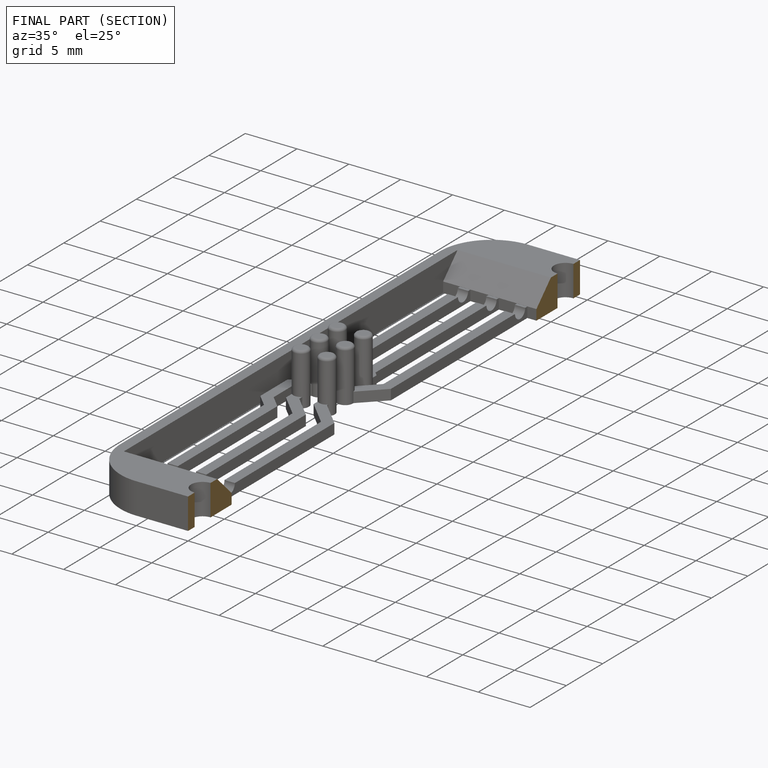
[diagram: finished part — half-section view (interior)]
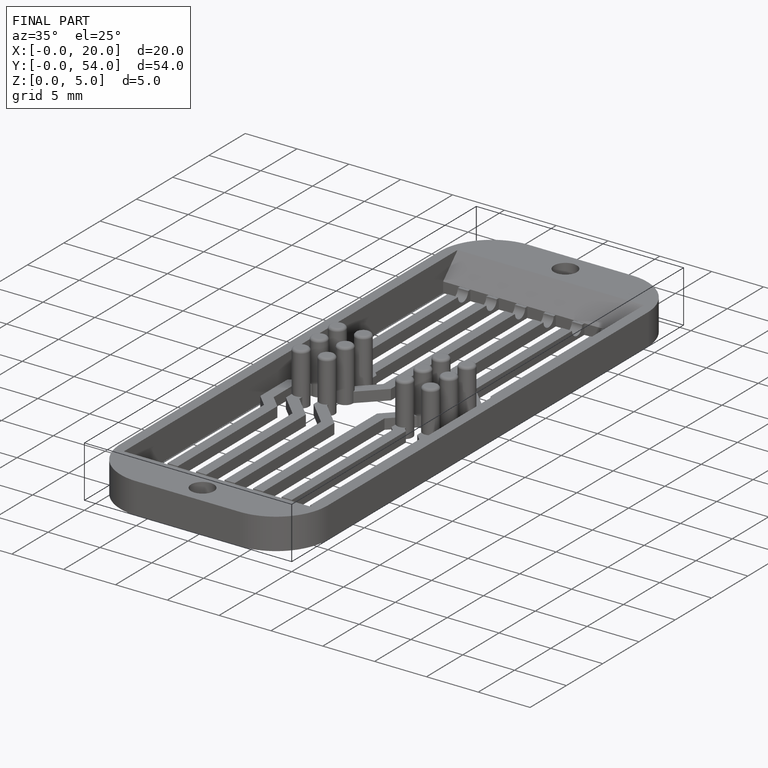
[diagram: finished part — iso view with bounding-box wireframe]
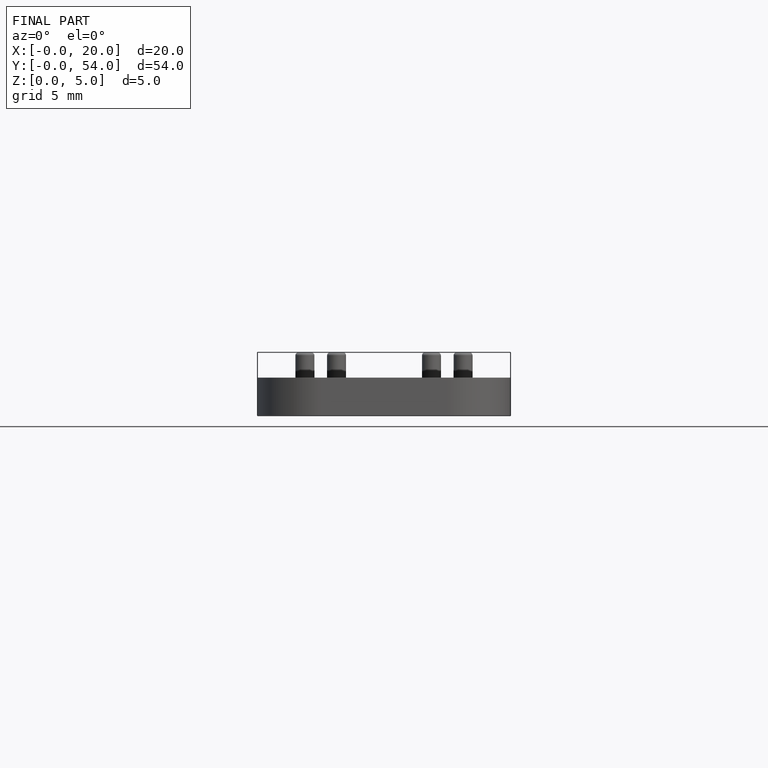
[diagram: finished part — front view with bounding-box wireframe]
